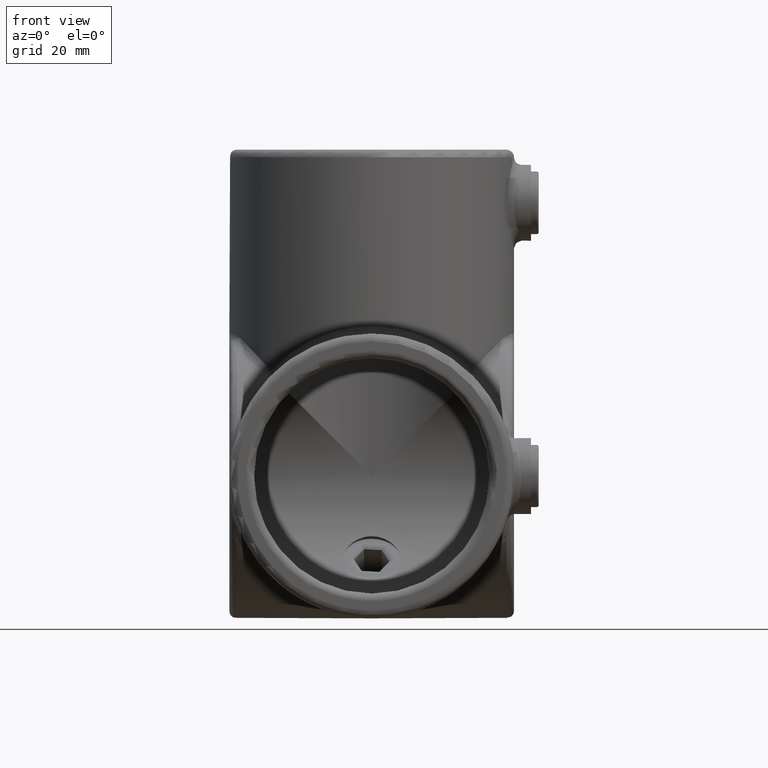
[diagram: clean part render]
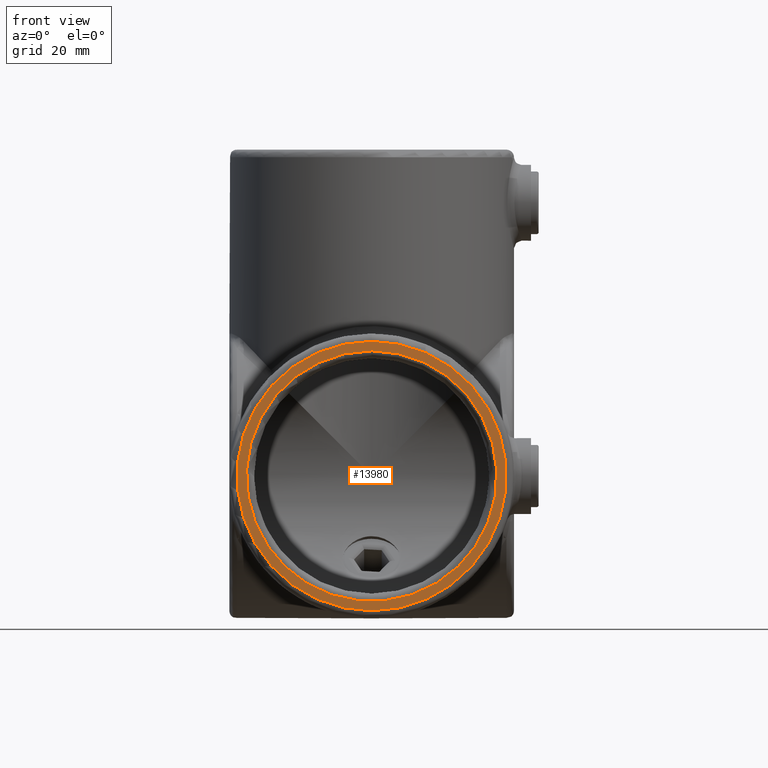
[diagram: same view with one face highlighted and labeled with its STEP entity id]
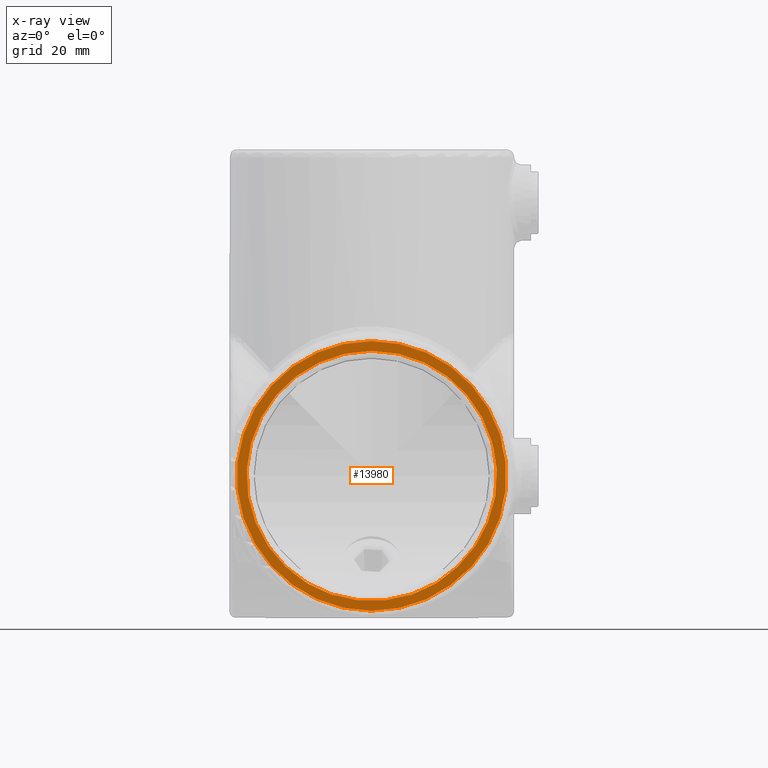
[diagram: x-ray of the same camera — body ghosted, the highlighted face saturated]
A machine part, front view. The second image highlights one B-rep face of the part: STEP entity #13980.
The next image is the same camera in x-ray: the body ghosted, the highlighted face saturated — about 0% of this face is hidden behind the body in this view.
In plain terms, the highlighted planar face has unit normal (0, 1, 0).
Its self-contained STEP definition (entity closure, byte-faithful):
#1807 = DIRECTION ( 'NONE',  ( 0.000000000000000000, 0.000000000000000000, 1.000000000000000000 ) ) ;
#2594 = AXIS2_PLACEMENT_3D ( 'NONE', #11748, #11798, #1807 ) ;
#2606 = EDGE_LOOP ( 'NONE', ( #3360 ) ) ;
#2945 = ORIENTED_EDGE ( 'NONE', *, *, #14764, .T. ) ;
#3360 = ORIENTED_EDGE ( 'NONE', *, *, #14483, .T. ) ;
#3564 = PLANE ( 'NONE',  #4210 ) ;
#3577 = FACE_BOUND ( 'NONE', #8000, .T. ) ;
#4210 = AXIS2_PLACEMENT_3D ( 'NONE', #4839, #13725, #9974 ) ;
#4627 = CARTESIAN_POINT ( 'NONE',  ( 0.000000000000000000, -86.00000000000000000, 33.00000000000000000 ) ) ;
#4666 = VERTEX_POINT ( 'NONE', #9531 ) ;
#4839 = CARTESIAN_POINT ( 'NONE',  ( 0.000000000000000000, -86.00000000000000000, 0.000000000000000000 ) ) ;
#5043 = AXIS2_PLACEMENT_3D ( 'NONE', #7333, #15132, #7282 ) ;
#7282 = DIRECTION ( 'NONE',  ( 0.000000000000000000, 0.000000000000000000, 1.000000000000000000 ) ) ;
#7333 = CARTESIAN_POINT ( 'NONE',  ( 0.000000000000000000, -86.00000000000000000, 0.000000000000000000 ) ) ;
#8000 = EDGE_LOOP ( 'NONE', ( #2945 ) ) ;
#8110 = CIRCLE ( 'NONE', #5043, 35.50000000000000711 ) ;
#9394 = VERTEX_POINT ( 'NONE', #4627 ) ;
#9531 = CARTESIAN_POINT ( 'NONE',  ( 0.000000000000000000, -86.00000000000000000, 35.50000000000000711 ) ) ;
#9974 = DIRECTION ( 'NONE',  ( 0.000000000000000000, -0.000000000000000000, 1.000000000000000000 ) ) ;
#11103 = CIRCLE ( 'NONE', #2594, 33.00000000000000000 ) ;
#11748 = CARTESIAN_POINT ( 'NONE',  ( 0.000000000000000000, -86.00000000000000000, 0.000000000000000000 ) ) ;
#11798 = DIRECTION ( 'NONE',  ( 0.000000000000000000, 1.000000000000000000, 0.000000000000000000 ) ) ;
#13725 = DIRECTION ( 'NONE',  ( 0.000000000000000000, 1.000000000000000000, 0.000000000000000000 ) ) ;
#13980 = ADVANCED_FACE ( 'NONE', ( #14523, #3577 ), #3564, .F. ) ;
#14483 = EDGE_CURVE ( 'NONE', #4666, #4666, #8110, .T. ) ;
#14523 = FACE_OUTER_BOUND ( 'NONE', #2606, .T. ) ;
#14764 = EDGE_CURVE ( 'NONE', #9394, #9394, #11103, .T. ) ;
#15132 = DIRECTION ( 'NONE',  ( -0.000000000000000000, -1.000000000000000000, -0.000000000000000000 ) ) ;